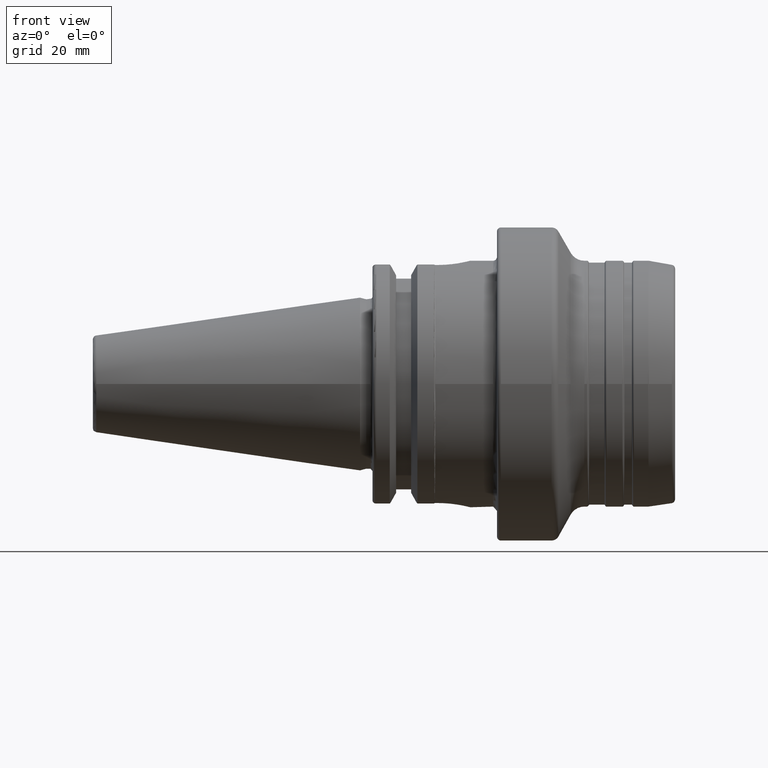
[diagram: clean part render]
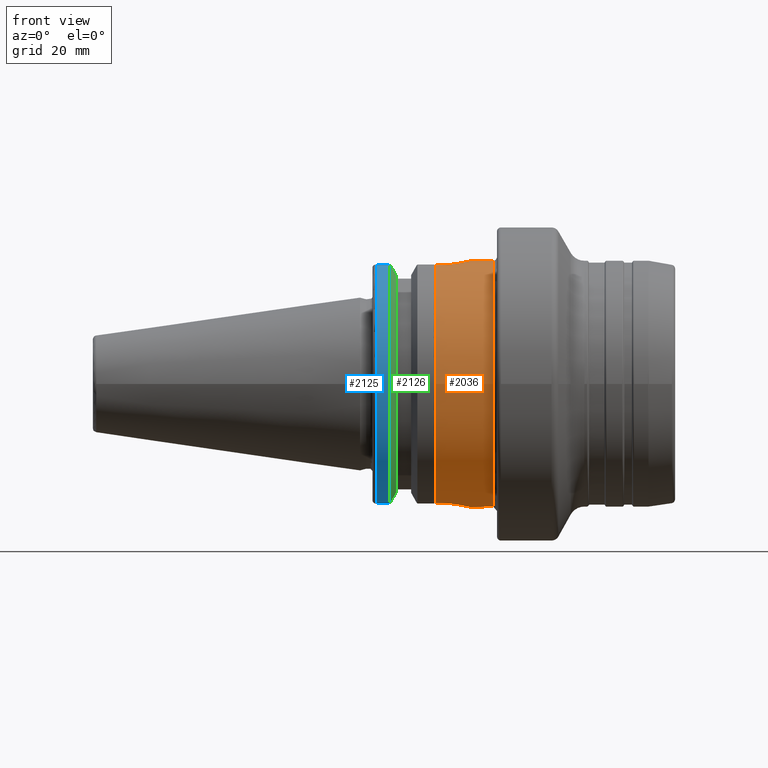
[diagram: same view with three faces highlighted in distinct colors, each labeled with its STEP entity id]
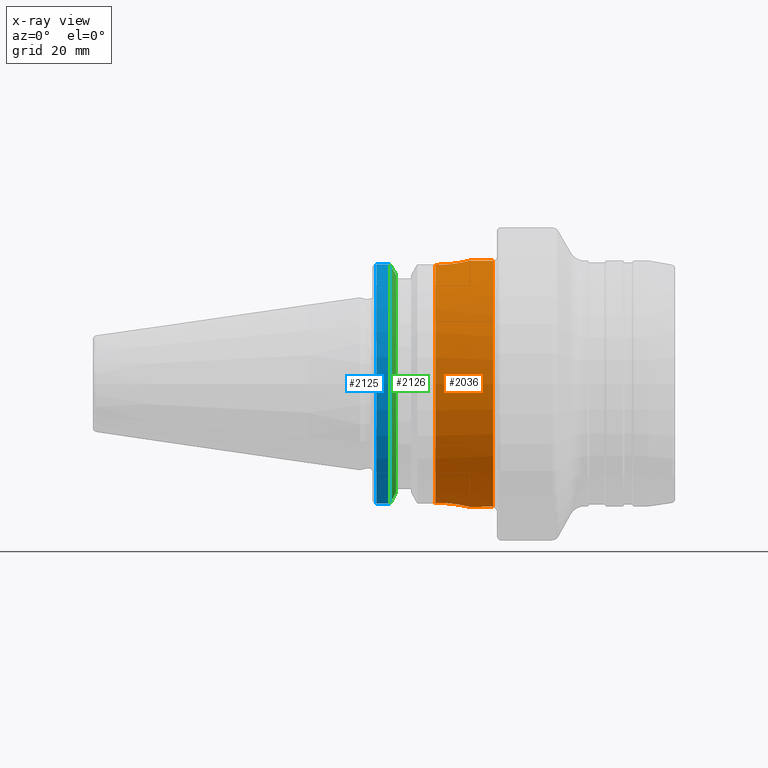
[diagram: x-ray of the same camera — body ghosted, the three highlighted faces saturated]
A machine part, front view with three faces highlighted in distinct colors.
The next image is the same camera in x-ray (body ghosted, the three faces saturated) — at least one of them is partly hidden behind the body in this view.
Their STEP definitions:

[orange] entity #2036 — the highlighted cylindrical surface (bore or boss wall) has radius 31.5 mm, axis along (1, 0, 0).
#115=LINE('',#3391,#204);
#116=LINE('',#3394,#205);
#117=LINE('',#3395,#206);
#118=LINE('',#3396,#207);
#119=LINE('',#3398,#208);
#120=LINE('',#3402,#209);
#121=LINE('',#3405,#210);
#122=LINE('',#3407,#211);
#123=LINE('',#3411,#212);
#204=VECTOR('',#2527,31.5);
#205=VECTOR('',#2530,10.);
#206=VECTOR('',#2531,10.);
#207=VECTOR('',#2532,10.);
#208=VECTOR('',#2533,10.);
#209=VECTOR('',#2536,10.);
#210=VECTOR('',#2539,10.);
#211=VECTOR('',#2540,10.);
#212=VECTOR('',#2543,10.);
#288=CYLINDRICAL_SURFACE('',#2181,31.5);
#323=FACE_OUTER_BOUND('',#429,.T.);
#429=EDGE_LOOP('',(#1403,#1404,#1405,#1406,#1407,#1408,#1409,#1410,#1411,
#1412,#1413,#1414,#1415,#1416,#1417,#1418,#1419,#1420,#1421,#1422,#1423,
#1424));
#546=CIRCLE('',#2176,31.5);
#547=CIRCLE('',#2178,31.5);
#549=CIRCLE('',#2182,31.5);
#550=CIRCLE('',#2183,31.5);
#551=CIRCLE('',#2184,31.5);
#552=CIRCLE('',#2185,31.5);
#553=CIRCLE('',#2186,31.5);
#554=CIRCLE('',#2187,31.5);
#555=CIRCLE('',#2188,31.5);
#556=CIRCLE('',#2189,31.5);
#734=B_SPLINE_CURVE_WITH_KNOTS('',3,(#3321,#3322,#3323,#3324,#3325,#3326,
#3327,#3328,#3329,#3330,#3331,#3332,#3333,#3334,#3335,#3336,#3337,#3338),
 .UNSPECIFIED.,.F.,.F.,(4,2,2,2,2,2,2,2,4),(-2.48037904531628,-2.17030617889066,
-1.86023331246503,-1.55021141756159,-1.24018952265814,-0.930167627754692,
-0.620145732851244,-0.310072866425622,0.),.UNSPECIFIED.);
#735=B_SPLINE_CURVE_WITH_KNOTS('',3,(#3361,#3362,#3363,#3364,#3365,#3366,
#3367,#3368,#3369,#3370,#3371,#3372,#3373,#3374,#3375,#3376,#3377,#3378),
 .UNSPECIFIED.,.F.,.F.,(4,2,2,2,2,2,2,2,4),(-2.48037904531628,-2.17030617889066,
-1.86023331246503,-1.55021141756159,-1.24018952265814,-0.930167627754692,
-0.620145732851244,-0.310072866425622,0.),.UNSPECIFIED.);
#786=VERTEX_POINT('',#3319);
#787=VERTEX_POINT('',#3320);
#791=VERTEX_POINT('',#3346);
#792=VERTEX_POINT('',#3348);
#793=VERTEX_POINT('',#3352);
#795=VERTEX_POINT('',#3355);
#796=VERTEX_POINT('',#3359);
#797=VERTEX_POINT('',#3360);
#800=VERTEX_POINT('',#3385);
#801=VERTEX_POINT('',#3386);
#802=VERTEX_POINT('',#3388);
#803=VERTEX_POINT('',#3390);
#804=VERTEX_POINT('',#3392);
#805=VERTEX_POINT('',#3397);
#806=VERTEX_POINT('',#3399);
#807=VERTEX_POINT('',#3401);
#808=VERTEX_POINT('',#3403);
#809=VERTEX_POINT('',#3406);
#810=VERTEX_POINT('',#3408);
#811=VERTEX_POINT('',#3410);
#1033=EDGE_CURVE('',#786,#787,#734,.T.);
#1038=EDGE_CURVE('',#792,#791,#546,.T.);
#1042=EDGE_CURVE('',#793,#795,#547,.T.);
#1043=EDGE_CURVE('',#796,#797,#735,.T.);
#1047=EDGE_CURVE('',#800,#801,#549,.T.);
#1048=EDGE_CURVE('',#802,#800,#550,.T.);
#1049=EDGE_CURVE('',#802,#803,#115,.T.);
#1050=EDGE_CURVE('',#804,#803,#551,.T.);
#1051=EDGE_CURVE('',#804,#792,#116,.T.);
#1052=EDGE_CURVE('',#791,#786,#117,.T.);
#1053=EDGE_CURVE('',#787,#793,#118,.T.);
#1054=EDGE_CURVE('',#795,#805,#119,.T.);
#1055=EDGE_CURVE('',#806,#805,#552,.T.);
#1056=EDGE_CURVE('',#806,#807,#120,.T.);
#1057=EDGE_CURVE('',#807,#808,#553,.T.);
#1058=EDGE_CURVE('',#808,#796,#121,.T.);
#1059=EDGE_CURVE('',#797,#809,#122,.T.);
#1060=EDGE_CURVE('',#809,#810,#554,.T.);
#1061=EDGE_CURVE('',#810,#811,#123,.T.);
#1062=EDGE_CURVE('',#803,#811,#555,.T.);
#1063=EDGE_CURVE('',#801,#802,#556,.T.);
#1403=ORIENTED_EDGE('',*,*,#1047,.F.);
#1404=ORIENTED_EDGE('',*,*,#1048,.F.);
#1405=ORIENTED_EDGE('',*,*,#1049,.T.);
#1406=ORIENTED_EDGE('',*,*,#1050,.F.);
#1407=ORIENTED_EDGE('',*,*,#1051,.T.);
#1408=ORIENTED_EDGE('',*,*,#1038,.T.);
#1409=ORIENTED_EDGE('',*,*,#1052,.T.);
#1410=ORIENTED_EDGE('',*,*,#1033,.T.);
#1411=ORIENTED_EDGE('',*,*,#1053,.T.);
#1412=ORIENTED_EDGE('',*,*,#1042,.T.);
#1413=ORIENTED_EDGE('',*,*,#1054,.T.);
#1414=ORIENTED_EDGE('',*,*,#1055,.F.);
#1415=ORIENTED_EDGE('',*,*,#1056,.T.);
#1416=ORIENTED_EDGE('',*,*,#1057,.T.);
#1417=ORIENTED_EDGE('',*,*,#1058,.T.);
#1418=ORIENTED_EDGE('',*,*,#1043,.T.);
#1419=ORIENTED_EDGE('',*,*,#1059,.T.);
#1420=ORIENTED_EDGE('',*,*,#1060,.T.);
#1421=ORIENTED_EDGE('',*,*,#1061,.T.);
#1422=ORIENTED_EDGE('',*,*,#1062,.F.);
#1423=ORIENTED_EDGE('',*,*,#1049,.F.);
#1424=ORIENTED_EDGE('',*,*,#1063,.F.);
#2036=ADVANCED_FACE('',(#323),#288,.T.);
#2176=AXIS2_PLACEMENT_3D('',#3349,#2506,#2507);
#2178=AXIS2_PLACEMENT_3D('',#3357,#2513,#2514);
#2181=AXIS2_PLACEMENT_3D('',#3384,#2521,#2522);
#2182=AXIS2_PLACEMENT_3D('',#3387,#2523,#2524);
#2183=AXIS2_PLACEMENT_3D('',#3389,#2525,#2526);
#2184=AXIS2_PLACEMENT_3D('',#3393,#2528,#2529);
#2185=AXIS2_PLACEMENT_3D('',#3400,#2534,#2535);
#2186=AXIS2_PLACEMENT_3D('',#3404,#2537,#2538);
#2187=AXIS2_PLACEMENT_3D('',#3409,#2541,#2542);
#2188=AXIS2_PLACEMENT_3D('',#3412,#2544,#2545);
#2189=AXIS2_PLACEMENT_3D('',#3413,#2546,#2547);
#2506=DIRECTION('center_axis',(1.,0.,0.));
#2507=DIRECTION('ref_axis',(0.,0.,-1.));
#2513=DIRECTION('center_axis',(1.,0.,0.));
#2514=DIRECTION('ref_axis',(0.,0.,-1.));
#2521=DIRECTION('center_axis',(1.,0.,0.));
#2522=DIRECTION('ref_axis',(0.,1.,0.));
#2523=DIRECTION('center_axis',(1.,0.,0.));
#2524=DIRECTION('ref_axis',(0.,-1.,1.83697019872103E-16));
#2525=DIRECTION('center_axis',(1.,0.,0.));
#2526=DIRECTION('ref_axis',(0.,-1.,1.83697019872103E-16));
#2527=DIRECTION('',(-1.,0.,0.));
#2528=DIRECTION('center_axis',(-1.,0.,0.));
#2529=DIRECTION('ref_axis',(0.,1.,1.17145536458252E-15));
#2530=DIRECTION('',(-1.,0.,0.));
#2531=DIRECTION('',(1.,0.,0.));
#2532=DIRECTION('',(-1.,0.,0.));
#2533=DIRECTION('',(1.,0.,0.));
#2534=DIRECTION('center_axis',(-1.,0.,0.));
#2535=DIRECTION('ref_axis',(0.,-1.,-3.82856869892695E-16));
#2536=DIRECTION('',(-1.,0.,0.));
#2537=DIRECTION('center_axis',(1.,0.,0.));
#2538=DIRECTION('ref_axis',(0.,0.,-1.));
#2539=DIRECTION('',(1.,0.,0.));
#2540=DIRECTION('',(-1.,0.,0.));
#2541=DIRECTION('center_axis',(1.,0.,0.));
#2542=DIRECTION('ref_axis',(0.,0.,-1.));
#2543=DIRECTION('',(1.,0.,0.));
#2544=DIRECTION('center_axis',(-1.,0.,0.));
#2545=DIRECTION('ref_axis',(0.,1.,1.17145536458252E-15));
#2546=DIRECTION('center_axis',(1.,0.,0.));
#2547=DIRECTION('ref_axis',(0.,-1.,1.83697019872103E-16));
#3319=CARTESIAN_POINT('',(19.985,-8.19,-30.4166714155247));
#3320=CARTESIAN_POINT('',(19.985,8.19,-30.4166714155247));
#3321=CARTESIAN_POINT('Ctrl Pts',(19.985,-8.19,-30.4166714155247));
#3322=CARTESIAN_POINT('Ctrl Pts',(21.0185762214187,-8.19,-30.4166714155247));
#3323=CARTESIAN_POINT('Ctrl Pts',(22.1176067446603,-7.98246345585411,-30.4748461620247));
#3324=CARTESIAN_POINT('Ctrl Pts',(24.1339317694115,-7.14521560923192,-30.6819468057544));
#3325=CARTESIAN_POINT('Ctrl Pts',(25.0516648494428,-6.51574422639281,-30.827559086336));
#3326=CARTESIAN_POINT('Ctrl Pts',(26.5006251224827,-5.06678395335291,-31.0985665875674));
#3327=CARTESIAN_POINT('Ctrl Pts',(27.130189258491,-4.14900148987399,-31.2419999876357));
#3328=CARTESIAN_POINT('Ctrl Pts',(27.9675049476664,-2.13250056019267,-31.4440649071638));
#3329=CARTESIAN_POINT('Ctrl Pts',(28.175,-1.03340631634483,-31.5));
#3330=CARTESIAN_POINT('Ctrl Pts',(28.175,1.03340631634482,-31.5));
#3331=CARTESIAN_POINT('Ctrl Pts',(27.9675049476664,2.13250056019267,-31.4440649071638));
#3332=CARTESIAN_POINT('Ctrl Pts',(27.130189258491,4.14900148987398,-31.2419999876357));
#3333=CARTESIAN_POINT('Ctrl Pts',(26.5006251224827,5.0667839533529,-31.0985665875674));
#3334=CARTESIAN_POINT('Ctrl Pts',(25.0516648494428,6.51574422639281,-30.827559086336));
#3335=CARTESIAN_POINT('Ctrl Pts',(24.1339317694115,7.14521560923192,-30.6819468057544));
#3336=CARTESIAN_POINT('Ctrl Pts',(22.1176067446603,7.9824634558541,-30.4748461620247));
#3337=CARTESIAN_POINT('Ctrl Pts',(21.0185762214187,8.19,-30.4166714155247));
#3338=CARTESIAN_POINT('Ctrl Pts',(19.985,8.19,-30.4166714155247));
#3346=CARTESIAN_POINT('',(19.05,-8.19,-30.4166714155247));
#3348=CARTESIAN_POINT('',(19.05,-8.4229748633695,-30.352981640212));
#3349=CARTESIAN_POINT('Origin',(19.05,0.,0.));
#3352=CARTESIAN_POINT('',(19.05,8.19,-30.4166714155247));
#3355=CARTESIAN_POINT('',(19.05,8.4229748633695,-30.352981640212));
#3357=CARTESIAN_POINT('Origin',(19.05,0.,0.));
#3359=CARTESIAN_POINT('',(19.985,8.19,30.4166714155247));
#3360=CARTESIAN_POINT('',(19.985,-8.19,30.4166714155247));
#3361=CARTESIAN_POINT('Ctrl Pts',(19.985,8.19,30.4166714155247));
#3362=CARTESIAN_POINT('Ctrl Pts',(21.0185762214187,8.19,30.4166714155247));
#3363=CARTESIAN_POINT('Ctrl Pts',(22.1176067446603,7.9824634558541,30.4748461620247));
#3364=CARTESIAN_POINT('Ctrl Pts',(24.1339317694115,7.14521560923192,30.6819468057544));
#3365=CARTESIAN_POINT('Ctrl Pts',(25.0516648494428,6.51574422639281,30.827559086336));
#3366=CARTESIAN_POINT('Ctrl Pts',(26.5006251224828,5.0667839533529,31.0985665875674));
#3367=CARTESIAN_POINT('Ctrl Pts',(27.130189258491,4.14900148987398,31.2419999876357));
#3368=CARTESIAN_POINT('Ctrl Pts',(27.9675049476664,2.13250056019267,31.4440649071638));
#3369=CARTESIAN_POINT('Ctrl Pts',(28.175,1.03340631634482,31.5));
#3370=CARTESIAN_POINT('Ctrl Pts',(28.175,-1.03340631634483,31.5));
#3371=CARTESIAN_POINT('Ctrl Pts',(27.9675049476664,-2.13250056019267,31.4440649071638));
#3372=CARTESIAN_POINT('Ctrl Pts',(27.130189258491,-4.14900148987398,31.2419999876357));
#3373=CARTESIAN_POINT('Ctrl Pts',(26.5006251224827,-5.0667839533529,31.0985665875674));
#3374=CARTESIAN_POINT('Ctrl Pts',(25.0516648494428,-6.51574422639281,30.827559086336));
#3375=CARTESIAN_POINT('Ctrl Pts',(24.1339317694115,-7.14521560923192,30.6819468057544));
#3376=CARTESIAN_POINT('Ctrl Pts',(22.1176067446603,-7.9824634558541,30.4748461620247));
#3377=CARTESIAN_POINT('Ctrl Pts',(21.0185762214187,-8.19,30.4166714155247));
#3378=CARTESIAN_POINT('Ctrl Pts',(19.985,-8.19,30.4166714155247));
#3384=CARTESIAN_POINT('Origin',(27.025,0.,0.));
#3385=CARTESIAN_POINT('',(34.,31.5,-1.92881870865708E-15));
#3386=CARTESIAN_POINT('',(34.,-3.85763741731416E-15,31.5));
#3387=CARTESIAN_POINT('Origin',(34.,0.,0.));
#3388=CARTESIAN_POINT('',(34.,-31.5,-3.85763741731416E-15));
#3389=CARTESIAN_POINT('Origin',(34.,0.,0.));
#3390=CARTESIAN_POINT('',(19.2208099243548,-31.5,-3.85763741731416E-15));
#3391=CARTESIAN_POINT('',(27.025,-31.5,-3.85763741731416E-15));
#3392=CARTESIAN_POINT('',(19.2208099243548,-8.4229748633695,-30.352981640212));
#3393=CARTESIAN_POINT('Origin',(19.2208099243548,0.,0.));
#3394=CARTESIAN_POINT('',(27.025,-8.4229748633695,-30.352981640212));
#3395=CARTESIAN_POINT('',(27.025,-8.19,-30.4166714155247));
#3396=CARTESIAN_POINT('',(27.025,8.19,-30.4166714155247));
#3397=CARTESIAN_POINT('',(19.2208099243548,8.4229748633695,-30.352981640212));
#3398=CARTESIAN_POINT('',(27.025,8.4229748633695,-30.352981640212));
#3399=CARTESIAN_POINT('',(19.2208099243548,8.4229748633695,30.352981640212));
#3400=CARTESIAN_POINT('Origin',(19.2208099243548,0.,0.));
#3401=CARTESIAN_POINT('',(19.05,8.4229748633695,30.352981640212));
#3402=CARTESIAN_POINT('',(27.025,8.4229748633695,30.352981640212));
#3403=CARTESIAN_POINT('',(19.05,8.19,30.4166714155247));
#3404=CARTESIAN_POINT('Origin',(19.05,0.,0.));
#3405=CARTESIAN_POINT('',(27.025,8.19,30.4166714155247));
#3406=CARTESIAN_POINT('',(19.05,-8.19,30.4166714155247));
#3407=CARTESIAN_POINT('',(27.025,-8.19,30.4166714155247));
#3408=CARTESIAN_POINT('',(19.05,-8.42297486336951,30.352981640212));
#3409=CARTESIAN_POINT('Origin',(19.05,0.,0.));
#3410=CARTESIAN_POINT('',(19.2208099243548,-8.42297486336951,30.352981640212));
#3411=CARTESIAN_POINT('',(27.025,-8.42297486336951,30.352981640212));
#3412=CARTESIAN_POINT('Origin',(19.2208099243548,0.,0.));
#3413=CARTESIAN_POINT('Origin',(34.,0.,0.));

[blue] entity #2125 — the highlighted cylindrical surface (partial cylindrical patch) has radius 31.75 mm, axis along (1, 0, 0).
#164=LINE('',#3943,#253);
#171=LINE('',#4029,#260);
#253=VECTOR('',#2962,10.);
#260=VECTOR('',#3009,10.);
#309=CYLINDRICAL_SURFACE('',#2437,31.75);
#412=FACE_OUTER_BOUND('',#528,.T.);
#528=EDGE_LOOP('',(#1990,#1991,#1992,#1993));
#684=CIRCLE('',#2374,31.75);
#714=CIRCLE('',#2438,31.75);
#943=VERTEX_POINT('',#3892);
#944=VERTEX_POINT('',#3901);
#951=VERTEX_POINT('',#3942);
#970=VERTEX_POINT('',#4025);
#1245=EDGE_CURVE('',#943,#944,#684,.T.);
#1256=EDGE_CURVE('',#944,#951,#164,.T.);
#1283=EDGE_CURVE('',#970,#943,#171,.T.);
#1330=EDGE_CURVE('',#951,#970,#714,.T.);
#1990=ORIENTED_EDGE('',*,*,#1245,.F.);
#1991=ORIENTED_EDGE('',*,*,#1283,.F.);
#1992=ORIENTED_EDGE('',*,*,#1330,.F.);
#1993=ORIENTED_EDGE('',*,*,#1256,.F.);
#2125=ADVANCED_FACE('',(#412),#309,.T.);
#2374=AXIS2_PLACEMENT_3D('',#3902,#2951,#2952);
#2437=AXIS2_PLACEMENT_3D('',#4140,#3111,#3112);
#2438=AXIS2_PLACEMENT_3D('',#4141,#3113,#3114);
#2951=DIRECTION('center_axis',(-1.,0.,0.));
#2952=DIRECTION('ref_axis',(0.,-1.,1.60812264967664E-16));
#2962=DIRECTION('',(1.,0.,0.));
#3009=DIRECTION('',(-1.,0.,0.));
#3111=DIRECTION('center_axis',(1.,0.,0.));
#3112=DIRECTION('ref_axis',(0.,-1.,1.22464679914735E-16));
#3113=DIRECTION('center_axis',(1.,0.,0.));
#3114=DIRECTION('ref_axis',(0.,0.,-1.));
#3892=CARTESIAN_POINT('',(4.175,-8.67204822802685,-30.5427254764662));
#3901=CARTESIAN_POINT('',(4.175,-8.67204822802685,30.5427254764662));
#3902=CARTESIAN_POINT('Origin',(4.175,0.,0.));
#3942=CARTESIAN_POINT('',(7.60793323092436,-8.67204822802685,30.5427254764662));
#3943=CARTESIAN_POINT('',(5.39146661546218,-8.67204822802685,30.5427254764662));
#4025=CARTESIAN_POINT('',(7.60793323092436,-8.67204822802685,-30.5427254764662));
#4029=CARTESIAN_POINT('',(5.39146661546218,-8.67204822802685,-30.5427254764662));
#4140=CARTESIAN_POINT('Origin',(5.39146661546218,0.,0.));
#4141=CARTESIAN_POINT('Origin',(7.60793323092436,0.,0.));

[green] entity #2126 — the highlighted conical surface has half-angle 60 deg.
#17=(
BOUNDED_CURVE()
B_SPLINE_CURVE(2,(#3928,#3929,#3930),.UNSPECIFIED.,.F.,.F.)
B_SPLINE_CURVE_WITH_KNOTS((3,3),(0.,0.276549142796136),.UNSPECIFIED.)
CURVE()
GEOMETRIC_REPRESENTATION_ITEM()
RATIONAL_B_SPLINE_CURVE((1.,1.00095203903316,1.00031614444813))
REPRESENTATION_ITEM('')
);
#19=(
BOUNDED_CURVE()
B_SPLINE_CURVE(2,(#3944,#3945,#3946),.UNSPECIFIED.,.F.,.F.)
B_SPLINE_CURVE_WITH_KNOTS((3,3),(0.,0.0639048713676282),.UNSPECIFIED.)
CURVE()
GEOMETRIC_REPRESENTATION_ITEM()
RATIONAL_B_SPLINE_CURVE((1.,1.00028444218284,1.00047644010574))
REPRESENTATION_ITEM('')
);
#22=(
BOUNDED_CURVE()
B_SPLINE_CURVE(2,(#4026,#4027,#4028),.UNSPECIFIED.,.F.,.F.)
B_SPLINE_CURVE_WITH_KNOTS((3,3),(0.329353533631205,0.393258405001025),
 .UNSPECIFIED.)
CURVE()
GEOMETRIC_REPRESENTATION_ITEM()
RATIONAL_B_SPLINE_CURVE((1.00047644010572,1.00028444218283,1.))
REPRESENTATION_ITEM('')
);
#24=(
BOUNDED_CURVE()
B_SPLINE_CURVE(2,(#4044,#4045,#4046),.UNSPECIFIED.,.F.,.F.)
B_SPLINE_CURVE_WITH_KNOTS((3,3),(0.0550586467392022,0.33160778953585),
 .UNSPECIFIED.)
CURVE()
GEOMETRIC_REPRESENTATION_ITEM()
RATIONAL_B_SPLINE_CURVE((1.00031614445148,1.00095203904325,1.))
REPRESENTATION_ITEM('')
);
#413=FACE_OUTER_BOUND('',#529,.T.);
#529=EDGE_LOOP('',(#1994,#1995,#1996,#1997,#1998,#1999));
#714=CIRCLE('',#2438,31.75);
#715=CIRCLE('',#2440,28.9593772964944);
#946=VERTEX_POINT('',#3925);
#947=VERTEX_POINT('',#3927);
#951=VERTEX_POINT('',#3942);
#969=VERTEX_POINT('',#4023);
#970=VERTEX_POINT('',#4025);
#975=VERTEX_POINT('',#4042);
#1250=EDGE_CURVE('',#947,#946,#17,.T.);
#1257=EDGE_CURVE('',#951,#946,#19,.T.);
#1282=EDGE_CURVE('',#969,#970,#22,.T.);
#1290=EDGE_CURVE('',#969,#975,#24,.T.);
#1330=EDGE_CURVE('',#951,#970,#714,.T.);
#1331=EDGE_CURVE('',#947,#975,#715,.T.);
#1994=ORIENTED_EDGE('',*,*,#1282,.F.);
#1995=ORIENTED_EDGE('',*,*,#1290,.T.);
#1996=ORIENTED_EDGE('',*,*,#1331,.F.);
#1997=ORIENTED_EDGE('',*,*,#1250,.T.);
#1998=ORIENTED_EDGE('',*,*,#1257,.F.);
#1999=ORIENTED_EDGE('',*,*,#1330,.T.);
#2022=CONICAL_SURFACE('',#2439,30.3546886482472,1.0471975511966);
#2126=ADVANCED_FACE('',(#413),#2022,.T.);
#2438=AXIS2_PLACEMENT_3D('',#4141,#3113,#3114);
#2439=AXIS2_PLACEMENT_3D('',#4142,#3115,#3116);
#2440=AXIS2_PLACEMENT_3D('',#4143,#3117,#3118);
#3113=DIRECTION('center_axis',(1.,0.,0.));
#3114=DIRECTION('ref_axis',(0.,0.,-1.));
#3115=DIRECTION('center_axis',(-1.,0.,0.));
#3116=DIRECTION('ref_axis',(0.,-1.,-1.22464679914735E-16));
#3117=DIRECTION('center_axis',(1.,0.,0.));
#3118=DIRECTION('ref_axis',(0.,0.,-1.));
#3925=CARTESIAN_POINT('',(7.88668530351257,-8.19,30.1755016258903));
#3927=CARTESIAN_POINT('',(9.2191,-8.19,27.7771386827498));
#3928=CARTESIAN_POINT('Ctrl Pts',(9.2191,-8.19,27.7771386827498));
#3929=CARTESIAN_POINT('Ctrl Pts',(8.58046356152393,-8.19,28.9303689539705));
#3930=CARTESIAN_POINT('Ctrl Pts',(7.88668530351257,-8.19,30.1755016258903));
#3942=CARTESIAN_POINT('',(7.60793323092436,-8.67204822802685,30.5427254764662));
#3944=CARTESIAN_POINT('Ctrl Pts',(7.60793323092436,-8.67204822802686,30.5427254764662));
#3945=CARTESIAN_POINT('Ctrl Pts',(7.74899148121626,-8.42917748262648,30.357706789263));
#3946=CARTESIAN_POINT('Ctrl Pts',(7.88668530351257,-8.19,30.1755016258903));
#4023=CARTESIAN_POINT('',(7.88668530351256,-8.19,-30.1755016258903));
#4025=CARTESIAN_POINT('',(7.60793323092436,-8.67204822802685,-30.5427254764662));
#4026=CARTESIAN_POINT('Ctrl Pts',(7.88668530351256,-8.19,-30.1755016258903));
#4027=CARTESIAN_POINT('Ctrl Pts',(7.74899148121159,-8.42917748263467,-30.3577067892692));
#4028=CARTESIAN_POINT('Ctrl Pts',(7.60793323092435,-8.67204822802687,-30.5427254764662));
#4042=CARTESIAN_POINT('',(9.2191,-8.19,-27.7771386827498));
#4044=CARTESIAN_POINT('Ctrl Pts',(7.88668530351256,-8.19,-30.1755016258903));
#4045=CARTESIAN_POINT('Ctrl Pts',(8.5804635615235,-8.19,-28.9303689539712));
#4046=CARTESIAN_POINT('Ctrl Pts',(9.2191,-8.19,-27.7771386827498));
#4141=CARTESIAN_POINT('Origin',(7.60793323092436,0.,0.));
#4142=CARTESIAN_POINT('Origin',(8.41351661546218,0.,0.));
#4143=CARTESIAN_POINT('Origin',(9.2191,0.,0.));